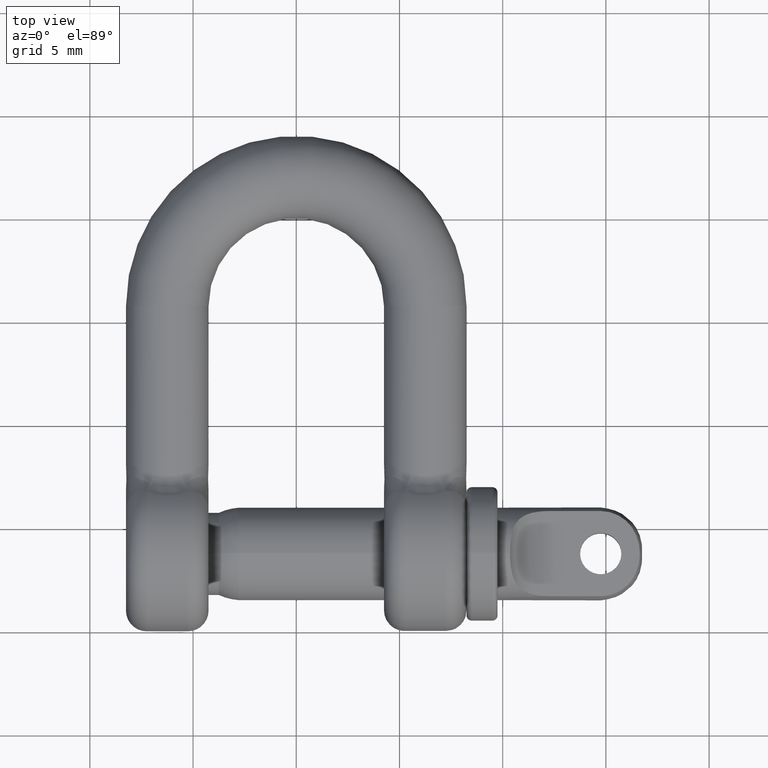
[diagram: clean part render]
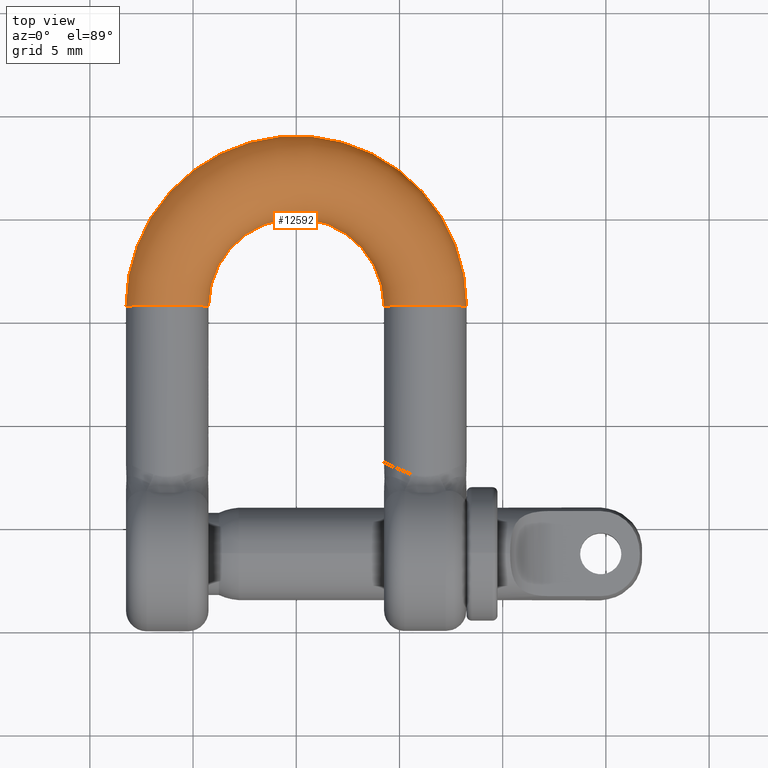
[diagram: same view with one face highlighted and labeled with its STEP entity id]
A machine part, top view. The second image highlights one B-rep face of the part: STEP entity #12592.
In plain terms, the highlighted toroidal blend (fillet) surface has major radius 6.25 mm and minor (blend) radius 2 mm.
Its self-contained STEP definition (entity closure, byte-faithful):
#116 = AXIS2_PLACEMENT_3D ( 'NONE', #2711, #1737, #7068 ) ;
#163 = CARTESIAN_POINT ( 'NONE',  ( 0.0000000000000000000, 15.75000000000000000, 0.0000000000000000000 ) ) ;
#294 = CARTESIAN_POINT ( 'NONE',  ( -6.250000000000000000, 15.75000000000000000, 2.000000000000000400 ) ) ;
#770 = VERTEX_POINT ( 'NONE', #7312 ) ;
#968 = ORIENTED_EDGE ( 'NONE', *, *, #12731, .T. ) ;
#1043 = ORIENTED_EDGE ( 'NONE', *, *, #9943, .T. ) ;
#1357 = DIRECTION ( 'NONE',  ( -0.0000000000000000000, -0.0000000000000000000, -1.000000000000000000 ) ) ;
#1737 = DIRECTION ( 'NONE',  ( 0.0000000000000000000, 1.000000000000000000, 0.0000000000000000000 ) ) ;
#1830 = EDGE_CURVE ( 'NONE', #770, #7777, #9238, .T. ) ;
#2030 = ORIENTED_EDGE ( 'NONE', *, *, #13408, .T. ) ;
#2245 = AXIS2_PLACEMENT_3D ( 'NONE', #163, #7558, #6451 ) ;
#2252 = DIRECTION ( 'NONE',  ( 0.0000000000000000000, 0.0000000000000000000, 1.000000000000000000 ) ) ;
#2711 = CARTESIAN_POINT ( 'NONE',  ( -6.250000000000000000, 15.75000000000000000, 0.0000000000000000000 ) ) ;
#3189 = ORIENTED_EDGE ( 'NONE', *, *, #7324, .F. ) ;
#3228 = CIRCLE ( 'NONE', #6838, 2.000000000000000400 ) ;
#3556 = CARTESIAN_POINT ( 'NONE',  ( 0.0000000000000000000, 15.75000000000000000, 2.449293598294706900E-016 ) ) ;
#4496 = CARTESIAN_POINT ( 'NONE',  ( 0.0000000000000000000, 15.75000000000000000, 0.0000000000000000000 ) ) ;
#4580 = CARTESIAN_POINT ( 'NONE',  ( 4.250000000000000000, 15.75000000000000000, 2.449293598294707400E-016 ) ) ;
#5649 = DIRECTION ( 'NONE',  ( -1.000000000000000000, 0.0000000000000000000, 0.0000000000000000000 ) ) ;
#5742 = AXIS2_PLACEMENT_3D ( 'NONE', #4496, #7678, #8783 ) ;
#5847 = CARTESIAN_POINT ( 'NONE',  ( -6.250000000000000000, 15.75000000000000000, 0.0000000000000000000 ) ) ;
#6043 = TOROIDAL_SURFACE ( 'NONE', #2245, 6.250000000000000000, 2.000000000000000400 ) ;
#6451 = DIRECTION ( 'NONE',  ( -1.000000000000000000, 0.0000000000000000000, 0.0000000000000000000 ) ) ;
#6467 = CARTESIAN_POINT ( 'NONE',  ( 6.250000000000000000, 15.75000000000000000, 0.0000000000000000000 ) ) ;
#6630 = EDGE_LOOP ( 'NONE', ( #11246, #2030, #1043, #968, #3189 ) ) ;
#6838 = AXIS2_PLACEMENT_3D ( 'NONE', #6467, #10574, #2252 ) ;
#6859 = AXIS2_PLACEMENT_3D ( 'NONE', #3556, #1357, #5649 ) ;
#7068 = DIRECTION ( 'NONE',  ( 0.0000000000000000000, 0.0000000000000000000, 1.000000000000000000 ) ) ;
#7136 = CARTESIAN_POINT ( 'NONE',  ( 8.250000000000000000, 15.75000000000000000, 0.0000000000000000000 ) ) ;
#7312 = CARTESIAN_POINT ( 'NONE',  ( -8.250000000000000000, 15.75000000000000000, 0.0000000000000000000 ) ) ;
#7324 = EDGE_CURVE ( 'NONE', #7777, #9429, #3228, .T. ) ;
#7558 = DIRECTION ( 'NONE',  ( -0.0000000000000000000, -0.0000000000000000000, -1.000000000000000000 ) ) ;
#7678 = DIRECTION ( 'NONE',  ( -0.0000000000000000000, -0.0000000000000000000, -1.000000000000000000 ) ) ;
#7777 = VERTEX_POINT ( 'NONE', #7136 ) ;
#7853 = FACE_OUTER_BOUND ( 'NONE', #6630, .T. ) ;
#8783 = DIRECTION ( 'NONE',  ( -1.000000000000000000, 0.0000000000000000000, 0.0000000000000000000 ) ) ;
#9238 = CIRCLE ( 'NONE', #5742, 8.250000000000000000 ) ;
#9429 = VERTEX_POINT ( 'NONE', #4580 ) ;
#9536 = CIRCLE ( 'NONE', #11254, 2.000000000000000400 ) ;
#9813 = CIRCLE ( 'NONE', #116, 2.000000000000000400 ) ;
#9943 = EDGE_CURVE ( 'NONE', #12711, #13375, #9536, .T. ) ;
#10128 = CARTESIAN_POINT ( 'NONE',  ( -4.250000000000000000, 15.75000000000000000, 2.449293598294707400E-016 ) ) ;
#10574 = DIRECTION ( 'NONE',  ( 1.224646799147353200E-016, -1.000000000000000000, 0.0000000000000000000 ) ) ;
#11043 = DIRECTION ( 'NONE',  ( 0.0000000000000000000, 1.000000000000000000, 0.0000000000000000000 ) ) ;
#11140 = DIRECTION ( 'NONE',  ( 0.0000000000000000000, 0.0000000000000000000, 1.000000000000000000 ) ) ;
#11246 = ORIENTED_EDGE ( 'NONE', *, *, #1830, .F. ) ;
#11254 = AXIS2_PLACEMENT_3D ( 'NONE', #5847, #11043, #11140 ) ;
#12592 = ADVANCED_FACE ( 'NONE', ( #7853 ), #6043, .T. ) ;
#12711 = VERTEX_POINT ( 'NONE', #294 ) ;
#12731 = EDGE_CURVE ( 'NONE', #13375, #9429, #13110, .T. ) ;
#13110 = CIRCLE ( 'NONE', #6859, 4.250000000000000000 ) ;
#13375 = VERTEX_POINT ( 'NONE', #10128 ) ;
#13408 = EDGE_CURVE ( 'NONE', #770, #12711, #9813, .T. ) ;